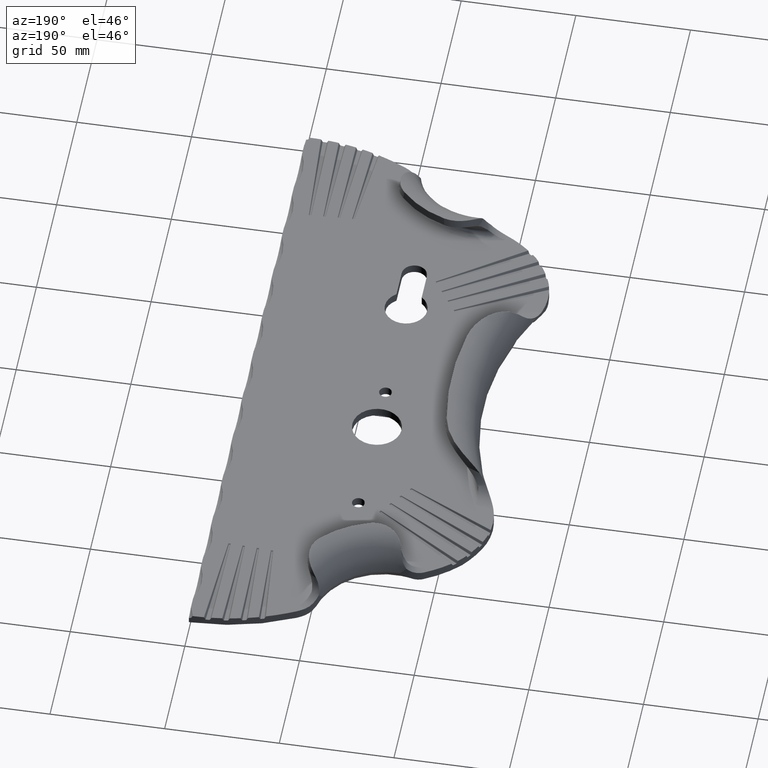
[diagram: clean part render]
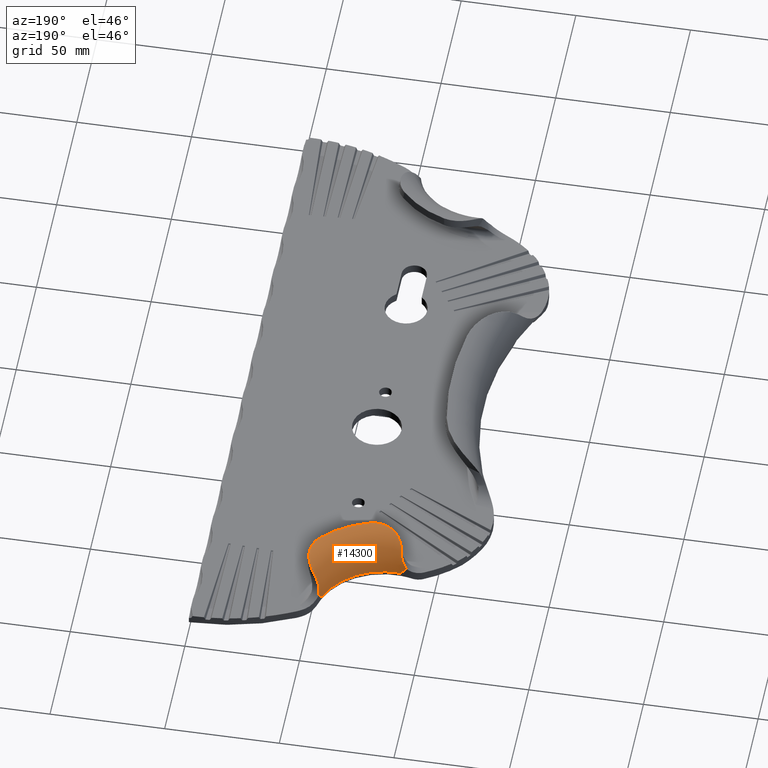
[diagram: same view with one face highlighted and labeled with its STEP entity id]
A machine part, auxiliary view. The second image highlights one B-rep face of the part: STEP entity #14300.
In plain terms, the highlighted toroidal blend (fillet) surface has major radius 46.3857 mm and minor (blend) radius 16.1429 mm.
Its self-contained STEP definition (entity closure, byte-faithful):
#186 = VERTEX_POINT ( 'NONE', #323 ) ;
#229 = VERTEX_POINT ( 'NONE', #3477 ) ;
#323 = CARTESIAN_POINT ( 'NONE',  ( -51.52147292990645900, 267.5615496014710300, 13.67814357956966700 ) ) ;
#465 = CARTESIAN_POINT ( 'NONE',  ( -85.03321912463096100, 249.3537609815124100, 4.000000000000000000 ) ) ;
#516 = CARTESIAN_POINT ( 'NONE',  ( -70.34831308094410900, 237.0425028211650200, 19.99999999999999300 ) ) ;
#522 = CARTESIAN_POINT ( 'NONE',  ( -48.53618778916807500, 264.2631295396287800, 17.47372681381240200 ) ) ;
#715 = EDGE_CURVE ( 'NONE', #229, #2628, #10956, .T. ) ;
#1177 = VERTEX_POINT ( 'NONE', #9949 ) ;
#1230 = ORIENTED_EDGE ( 'NONE', *, *, #5495, .T. ) ;
#1554 = ORIENTED_EDGE ( 'NONE', *, *, #9859, .T. ) ;
#1572 = AXIS2_PLACEMENT_3D ( 'NONE', #12414, #6855, #12467 ) ;
#1623 = CARTESIAN_POINT ( 'NONE',  ( -49.63767188010626800, 265.8392460711502300, 16.26261955578323500 ) ) ;
#1818 = CIRCLE ( 'NONE', #1572, 30.24287678107400600 ) ;
#1852 = CARTESIAN_POINT ( 'NONE',  ( -87.07341709263732800, 249.0721335381085700, 7.981971563556558500 ) ) ;
#1873 = CARTESIAN_POINT ( 'NONE',  ( -80.62111632224099400, 239.2818889661822700, 18.95570221436230400 ) ) ;
#2299 = CARTESIAN_POINT ( 'NONE',  ( -53.74545148798242900, 270.6454672629559500, 6.108510218012996900 ) ) ;
#2462 = CARTESIAN_POINT ( 'NONE',  ( -51.52147292990645900, 267.5615496014710300, 13.67814357956966700 ) ) ;
#2628 = VERTEX_POINT ( 'NONE', #6489 ) ;
#2666 = VERTEX_POINT ( 'NONE', #465 ) ;
#2890 = DIRECTION ( 'NONE',  ( 0.0000000000000000000, 0.0000000000000000000, 1.000000000000000000 ) ) ;
#2945 = ORIENTED_EDGE ( 'NONE', *, *, #14337, .T. ) ;
#3021 = B_SPLINE_CURVE_WITH_KNOTS ( 'NONE', 3,
 ( #8054, #18111, #2299, #5132 ),
 .UNSPECIFIED., .F., .F.,
 ( 4, 4 ),
 ( -2.541090976563400100E-005, 0.004137654304646486100 ),
 .UNSPECIFIED. ) ;
#3305 = CARTESIAN_POINT ( 'NONE',  ( -84.31403366950513600, 244.0167062187763600, 15.95421784292702900 ) ) ;
#3364 = CARTESIAN_POINT ( 'NONE',  ( -83.21737852322365800, 242.0381566964796900, 17.46744685447505700 ) ) ;
#3401 = CARTESIAN_POINT ( 'NONE',  ( -85.46113334236746100, 247.6349744089502800, 11.30975695110013600 ) ) ;
#3428 = CARTESIAN_POINT ( 'NONE',  ( -78.31989773329897300, 237.9124225908197700, 19.49080380954675500 ) ) ;
#3477 = CARTESIAN_POINT ( 'NONE',  ( -84.96299517538510300, 246.1180904038264700, 13.67814357956966900 ) ) ;
#3564 = VERTEX_POINT ( 'NONE', #13100 ) ;
#4361 = CARTESIAN_POINT ( 'NONE',  ( -49.37139009923249900, 250.4936410468964100, 20.00000000000000000 ) ) ;
#4513 = CARTESIAN_POINT ( 'NONE',  ( -82.78054850216793200, 279.5126248702916900, 4.000000000000001800 ) ) ;
#4535 = CARTESIAN_POINT ( 'NONE',  ( -53.32544940541043100, 270.7120924727557800, 7.981971563564794500 ) ) ;
#4585 = CARTESIAN_POINT ( 'NONE',  ( -87.70551391134490900, 249.3480570742898100, 7.203702910011755600 ) ) ;
#4601 = CARTESIAN_POINT ( 'NONE',  ( -47.96489385701580900, 263.1747969231105300, 18.06686452502843900 ) ) ;
#4755 = DIRECTION ( 'NONE',  ( 1.000000000000000000, 0.0000000000000000000, 0.0000000000000000000 ) ) ;
#4833 = CARTESIAN_POINT ( 'NONE',  ( -82.98461427082757800, 241.7122692800068600, 17.67544101901422600 ) ) ;
#4953 = AXIS2_PLACEMENT_3D ( 'NONE', #4513, #13388, #4755 ) ;
#4959 = CARTESIAN_POINT ( 'NONE',  ( -84.85547435306510500, 245.5677954339647900, 14.40184239309483900 ) ) ;
#4967 = CARTESIAN_POINT ( 'NONE',  ( -87.70551391134490900, 249.3480570742898100, 7.203702910011755600 ) ) ;
#5132 = CARTESIAN_POINT ( 'NONE',  ( -53.30945088836770700, 271.4512691237357000, 7.152747542949389200 ) ) ;
#5451 = EDGE_CURVE ( 'NONE', #17097, #1177, #3021, .T. ) ;
#5495 = EDGE_CURVE ( 'NONE', #13809, #1177, #18235, .T. ) ;
#5729 = CARTESIAN_POINT ( 'NONE',  ( -46.81096011017601200, 258.1006598506812100, 19.49962537529797000 ) ) ;
#6034 = B_SPLINE_CURVE_WITH_KNOTS ( 'NONE', 3,
 ( #17392, #4361, #14394, #7377, #17522, #15850, #8866, #10316, #14454, #5729, #18864, #7182, #11756, #8675, #18806, #14754, #4601, #12293, #522, #9459, #1623, #13240, #14693, #6045, #16165, #7890 ),
 .UNSPECIFIED., .F., .F.,
 ( 4, 2, 2, 2, 2, 2, 2, 2, 2, 2, 2, 2, 4 ),
 ( 0.0000000000000000000, 0.002712338755535840000, 0.004068508133303760600, 0.005424677511071679900, 0.008137016266607526400, 0.01084935502214337200, 0.01220552439991121800, 0.01356169377767906300, 0.01491786315544690700, 0.01627403253321475400, 0.01898637128875056700, 0.02034254066651846800, 0.02169871004428636900 ),
 .UNSPECIFIED. ) ;
#6045 = CARTESIAN_POINT ( 'NONE',  ( -51.06388272555322800, 267.2177129684948800, 14.38184835343107400 ) ) ;
#6159 = CARTESIAN_POINT ( 'NONE',  ( -77.07177791856038600, 237.4089919662524200, 19.66652372324664500 ) ) ;
#6229 = CARTESIAN_POINT ( 'NONE',  ( -79.50742879361060000, 238.5489842872434800, 19.25313800566677000 ) ) ;
#6266 = CARTESIAN_POINT ( 'NONE',  ( -85.53607800476127900, 247.7642852000908200, 11.06310818151835700 ) ) ;
#6291 = CARTESIAN_POINT ( 'NONE',  ( -73.06813820476897100, 236.7239866615219600, 19.94599862216261200 ) ) ;
#6363 = B_SPLINE_CURVE_WITH_KNOTS ( 'NONE', 3,
 ( #16051, #7383, #16352, #4967 ),
 .UNSPECIFIED., .F., .F.,
 ( 4, 4 ),
 ( -2.541090990826575700E-005, 0.004146538131965842700 ),
 .UNSPECIFIED. ) ;
#6489 = CARTESIAN_POINT ( 'NONE',  ( -69.47443913376184800, 237.3180802070143000, 20.00000000000000000 ) ) ;
#6555 = CARTESIAN_POINT ( 'NONE',  ( -87.07341709263732800, 249.0721335381085700, 7.981971563556558500 ) ) ;
#6797 = CARTESIAN_POINT ( 'NONE',  ( -52.54559983989070600, 268.3850764944643900, 11.80779912541620300 ) ) ;
#6798 = EDGE_CURVE ( 'NONE', #14826, #12654, #7315, .T. ) ;
#6855 = DIRECTION ( 'NONE',  ( -0.0000000000000000000, -0.0000000000000000000, -1.000000000000000000 ) ) ;
#7182 = CARTESIAN_POINT ( 'NONE',  ( -47.04973423954137200, 260.3037205567908900, 19.05977557579773700 ) ) ;
#7315 = B_SPLINE_CURVE_WITH_KNOTS ( 'NONE', 3,
 ( #4585, #16555, #18036, #6555 ),
 .UNSPECIFIED., .F., .F.,
 ( 4, 4 ),
 ( 0.0000000000000000000, 0.001039895323159712000 ),
 .UNSPECIFIED. ) ;
#7377 = CARTESIAN_POINT ( 'NONE',  ( -48.18017861975867100, 252.4143098965862500, 19.95769703308526700 ) ) ;
#7383 = CARTESIAN_POINT ( 'NONE',  ( -85.91751008393616500, 249.4198117542829600, 5.071248569951654500 ) ) ;
#7550 = CARTESIAN_POINT ( 'NONE',  ( -75.76131146569828400, 237.0407676837931800, 19.79468816675572300 ) ) ;
#7677 = CARTESIAN_POINT ( 'NONE',  ( -79.11711418141408100, 238.3211700593109300, 19.34017673118167500 ) ) ;
#7853 = CARTESIAN_POINT ( 'NONE',  ( -85.95251122288668500, 248.3749816336713000, 9.837619240292799100 ) ) ;
#7890 = CARTESIAN_POINT ( 'NONE',  ( -51.52147292990645900, 267.5615496014710300, 13.67814357956966700 ) ) ;
#8026 = CARTESIAN_POINT ( 'NONE',  ( -53.00404300187519600, 269.1428935399589500, 10.33946203778952900 ) ) ;
#8054 = CARTESIAN_POINT ( 'NONE',  ( -54.43269577446476100, 268.9755075356656000, 4.000000000000000000 ) ) ;
#8501 = TOROIDAL_SURFACE ( 'NONE', #4953, 46.38573392393117000, 16.14285714285713900 ) ;
#8675 = CARTESIAN_POINT ( 'NONE',  ( -47.36316136993488600, 261.5886808628307600, 18.69371545626807000 ) ) ;
#8866 = CARTESIAN_POINT ( 'NONE',  ( -47.47276338918131000, 254.0953984699177400, 19.88402765034037100 ) ) ;
#9000 = ORIENTED_EDGE ( 'NONE', *, *, #10690, .T. ) ;
#9186 = EDGE_CURVE ( 'NONE', #2628, #3564, #10923, .T. ) ;
#9269 = CARTESIAN_POINT ( 'NONE',  ( -82.19219503635518700, 240.7521203438728000, 18.23450820168326200 ) ) ;
#9433 = CARTESIAN_POINT ( 'NONE',  ( -85.26864362375492600, 247.2241981231774200, 12.03885993091450300 ) ) ;
#9459 = CARTESIAN_POINT ( 'NONE',  ( -49.17515399630590900, 265.2634154542855100, 16.78612869051593700 ) ) ;
#9777 = EDGE_LOOP ( 'NONE', ( #15110, #9000, #12894, #2945, #13944, #10853, #1554, #12773, #1230, #13731 ) ) ;
#9859 = EDGE_CURVE ( 'NONE', #3564, #186, #6034, .T. ) ;
#9949 = CARTESIAN_POINT ( 'NONE',  ( -53.30945088836770700, 271.4512691237357000, 7.152747542949389200 ) ) ;
#9978 = EDGE_CURVE ( 'NONE', #17097, #2666, #1818, .T. ) ;
#10064 = CARTESIAN_POINT ( 'NONE',  ( -53.12041058653562000, 269.4212692210331900, 9.842576324913951100 ) ) ;
#10203 = CARTESIAN_POINT ( 'NONE',  ( -87.70551391134490900, 249.3480570742898100, 7.203702910011755600 ) ) ;
#10316 = CARTESIAN_POINT ( 'NONE',  ( -47.08970315421313300, 255.3955995841387200, 19.80072997454527300 ) ) ;
#10561 = CARTESIAN_POINT ( 'NONE',  ( -84.16760312938946200, 243.6890220958649400, 16.23791650537157900 ) ) ;
#10677 = CARTESIAN_POINT ( 'NONE',  ( -71.24448830906681000, 236.8683821741245500, 19.99049023744774100 ) ) ;
#10690 = EDGE_CURVE ( 'NONE', #2666, #14826, #6363, .T. ) ;
#10745 = CARTESIAN_POINT ( 'NONE',  ( -69.47443913376184800, 237.3180802070143000, 20.00000000000000000 ) ) ;
#10853 = ORIENTED_EDGE ( 'NONE', *, *, #9186, .T. ) ;
#10923 = CIRCLE ( 'NONE', #14341, 44.24287678107398800 ) ;
#10956 = B_SPLINE_CURVE_WITH_KNOTS ( 'NONE', 3,
 ( #15002, #4959, #17865, #3305, #10561, #14875, #17930, #3364, #4833, #15063, #9269, #16225, #1873, #6229, #7677, #3428, #17809, #6159, #13524, #7550, #14933, #17679, #6291, #10677, #516, #10745 ),
 .UNSPECIFIED., .F., .F.,
 ( 4, 2, 2, 2, 2, 2, 2, 2, 2, 2, 2, 2, 4 ),
 ( 0.004526326329304267700, 0.007234983949490143100, 0.008589312759583047500, 0.009943641569675951800, 0.01129797037976885600, 0.01265229918986176100, 0.01536095681004751700, 0.01671528562014041800, 0.01806961443023331900, 0.01942394324032622000, 0.02077827205041912100, 0.02348692967060492600, 0.02619558729079072400 ),
 .UNSPECIFIED. ) ;
#11215 = EDGE_CURVE ( 'NONE', #186, #13809, #14508, .T. ) ;
#11698 = CARTESIAN_POINT ( 'NONE',  ( -53.30945088836770700, 271.4512691237357000, 7.152747542949389200 ) ) ;
#11756 = CARTESIAN_POINT ( 'NONE',  ( -47.13930622696471300, 260.7373105964431900, 18.94821357619292400 ) ) ;
#12200 = CARTESIAN_POINT ( 'NONE',  ( -85.03047273591420200, 246.4634426931458200, 13.22396708202433800 ) ) ;
#12293 = CARTESIAN_POINT ( 'NONE',  ( -48.33408519459239000, 263.9088891793757100, 17.68477716498838200 ) ) ;
#12414 = CARTESIAN_POINT ( 'NONE',  ( -82.78054850216793200, 279.5126248702916900, 4.000000000000000000 ) ) ;
#12467 = DIRECTION ( 'NONE',  ( 1.000000000000000000, 0.0000000000000000000, 0.0000000000000000000 ) ) ;
#12654 = VERTEX_POINT ( 'NONE', #15414 ) ;
#12773 = ORIENTED_EDGE ( 'NONE', *, *, #11215, .T. ) ;
#12894 = ORIENTED_EDGE ( 'NONE', *, *, #6798, .T. ) ;
#12980 = FACE_OUTER_BOUND ( 'NONE', #9777, .T. ) ;
#13100 = CARTESIAN_POINT ( 'NONE',  ( -49.98703428582969400, 249.8138442352535500, 20.00000000000000000 ) ) ;
#13240 = CARTESIAN_POINT ( 'NONE',  ( -50.34988420565095900, 266.5817143216023100, 15.36493863468905200 ) ) ;
#13388 = DIRECTION ( 'NONE',  ( 0.0000000000000000000, 0.0000000000000000000, 1.000000000000000000 ) ) ;
#13474 = CARTESIAN_POINT ( 'NONE',  ( -53.32544940541043100, 270.7120924727557800, 7.981971563564794500 ) ) ;
#13524 = CARTESIAN_POINT ( 'NONE',  ( -76.64196207834115200, 237.2707338220597300, 19.71369261392394300 ) ) ;
#13541 = CARTESIAN_POINT ( 'NONE',  ( -53.33204656025165500, 270.9459309648992200, 7.694142900433158500 ) ) ;
#13731 = ORIENTED_EDGE ( 'NONE', *, *, #5451, .F. ) ;
#13809 = VERTEX_POINT ( 'NONE', #13474 ) ;
#13944 = ORIENTED_EDGE ( 'NONE', *, *, #715, .T. ) ;
#14162 = B_SPLINE_CURVE_WITH_KNOTS ( 'NONE', 3,
 ( #1852, #16136, #7853, #6266, #3401, #16501, #9433, #16388, #12200, #16442 ),
 .UNSPECIFIED., .F., .F.,
 ( 4, 2, 2, 2, 4 ),
 ( 0.0000000000000000000, 0.003400009266734345800, 0.004250011583417933500, 0.005100013900101520700, 0.006800018533468650900 ),
 .UNSPECIFIED. ) ;
#14300 = ADVANCED_FACE ( 'NONE', ( #12980 ), #8501, .T. ) ;
#14337 = EDGE_CURVE ( 'NONE', #12654, #229, #14162, .T. ) ;
#14341 = AXIS2_PLACEMENT_3D ( 'NONE', #14476, #2890, #17651 ) ;
#14394 = CARTESIAN_POINT ( 'NONE',  ( -48.84404790930897600, 251.2296026270682300, 19.99049822385258000 ) ) ;
#14454 = CARTESIAN_POINT ( 'NONE',  ( -46.93107091898361500, 256.2855869505463000, 19.72474029600389800 ) ) ;
#14476 = CARTESIAN_POINT ( 'NONE',  ( -82.78054850216793200, 279.5126248702916900, 20.00000000000000000 ) ) ;
#14508 = B_SPLINE_CURVE_WITH_KNOTS ( 'NONE', 3,
 ( #2462, #16680, #6797, #8026, #10064, #17203, #18672, #17006 ),
 .UNSPECIFIED., .F., .F.,
 ( 4, 2, 2, 4 ),
 ( 3.469446951953614200E-018, 0.003411662640979776000, 0.005117493961469626000, 0.006823325281959475600 ),
 .UNSPECIFIED. ) ;
#14693 = CARTESIAN_POINT ( 'NONE',  ( -50.59147975242599700, 266.8096189275919400, 15.04526648920928600 ) ) ;
#14754 = CARTESIAN_POINT ( 'NONE',  ( -47.79639259355602800, 262.7928317250438100, 18.23940253552369100 ) ) ;
#14826 = VERTEX_POINT ( 'NONE', #10203 ) ;
#14875 = CARTESIAN_POINT ( 'NONE',  ( -83.82937554486589700, 243.0262399466025200, 16.76952279340017100 ) ) ;
#14933 = CARTESIAN_POINT ( 'NONE',  ( -75.31397042209756900, 236.9502344834183400, 19.82813834925076100 ) ) ;
#15002 = CARTESIAN_POINT ( 'NONE',  ( -84.96299517538510300, 246.1180904038264700, 13.67814357956966900 ) ) ;
#15063 = CARTESIAN_POINT ( 'NONE',  ( -82.47310918541751300, 241.0703209910900300, 18.05844001455221800 ) ) ;
#15110 = ORIENTED_EDGE ( 'NONE', *, *, #9978, .T. ) ;
#15414 = CARTESIAN_POINT ( 'NONE',  ( -87.07341709263732800, 249.0721335381085700, 7.981971563556558500 ) ) ;
#15850 = CARTESIAN_POINT ( 'NONE',  ( -47.62486357157111900, 253.6674421989608000, 19.90654578665708000 ) ) ;
#16051 = CARTESIAN_POINT ( 'NONE',  ( -85.03321912463096100, 249.3537609815124100, 4.000000000000000000 ) ) ;
#16136 = CARTESIAN_POINT ( 'NONE',  ( -86.42176570377658600, 248.7503757217078500, 8.876172809183017900 ) ) ;
#16165 = CARTESIAN_POINT ( 'NONE',  ( -51.29591019302437600, 267.3993601482770800, 14.03672708309116700 ) ) ;
#16225 = CARTESIAN_POINT ( 'NONE',  ( -81.29210015447786500, 239.8368772447521500, 18.70962726307972800 ) ) ;
#16352 = CARTESIAN_POINT ( 'NONE',  ( -86.80682242196127200, 249.4190425675544700, 6.142550573092940200 ) ) ;
#16388 = CARTESIAN_POINT ( 'NONE',  ( -85.11067875400539200, 246.7827214452865100, 12.75609942982505500 ) ) ;
#16442 = CARTESIAN_POINT ( 'NONE',  ( -84.96299517538510300, 246.1180904038264700, 13.67814357956966900 ) ) ;
#16501 = CARTESIAN_POINT ( 'NONE',  ( -85.32757482675769700, 247.3651262821681500, 11.79721315798906800 ) ) ;
#16555 = CARTESIAN_POINT ( 'NONE',  ( -87.48050448577711800, 249.2601809786317200, 7.452956088871251200 ) ) ;
#16680 = CARTESIAN_POINT ( 'NONE',  ( -52.09361753631212400, 267.9729465464787400, 12.76858901252650500 ) ) ;
#16727 = CARTESIAN_POINT ( 'NONE',  ( -54.43269577446476100, 268.9755075356656000, 4.000000000000000000 ) ) ;
#17006 = CARTESIAN_POINT ( 'NONE',  ( -53.32544940541043100, 270.7120924727557800, 7.981971563564794500 ) ) ;
#17097 = VERTEX_POINT ( 'NONE', #16727 ) ;
#17203 = CARTESIAN_POINT ( 'NONE',  ( -53.27519962029433700, 270.0255100073246700, 8.886771686584419100 ) ) ;
#17392 = CARTESIAN_POINT ( 'NONE',  ( -49.98703428582969400, 249.8138442352535500, 20.00000000000000000 ) ) ;
#17454 = CARTESIAN_POINT ( 'NONE',  ( -53.32572215779750700, 271.1919907351675100, 7.417457678591102200 ) ) ;
#17522 = CARTESIAN_POINT ( 'NONE',  ( -47.98012601534424700, 252.8231461381959700, 19.94354055099860900 ) ) ;
#17651 = DIRECTION ( 'NONE',  ( 1.000000000000000000, 0.0000000000000000000, 0.0000000000000000000 ) ) ;
#17679 = CARTESIAN_POINT ( 'NONE',  ( -73.97157684033388100, 236.7551414220062600, 19.91161564521072700 ) ) ;
#17809 = CARTESIAN_POINT ( 'NONE',  ( -77.91074629614290400, 237.7298323945181300, 19.55507206174460300 ) ) ;
#17865 = CARTESIAN_POINT ( 'NONE',  ( -84.68855933198942400, 244.9684096645550000, 15.06028767468021100 ) ) ;
#17930 = CARTESIAN_POINT ( 'NONE',  ( -83.63976561502926200, 242.6951355927177200, 17.01448479457267000 ) ) ;
#18036 = CARTESIAN_POINT ( 'NONE',  ( -87.26971626570122000, 249.1690577438510600, 7.712608268902872800 ) ) ;
#18111 = CARTESIAN_POINT ( 'NONE',  ( -54.11829408154416400, 269.8213378140251800, 5.054230511729876700 ) ) ;
#18235 = B_SPLINE_CURVE_WITH_KNOTS ( 'NONE', 3,
 ( #4535, #13541, #17454, #11698 ),
 .UNSPECIFIED., .F., .F.,
 ( 4, 4 ),
 ( 0.0000000000000000000, 0.001110968293997167900 ),
 .UNSPECIFIED. ) ;
#18672 = CARTESIAN_POINT ( 'NONE',  ( -53.31531627462341300, 270.3529200596549300, 8.424072068699635100 ) ) ;
#18806 = CARTESIAN_POINT ( 'NONE',  ( -47.49553579842341800, 261.9997719001939900, 18.55283291360776900 ) ) ;
#18864 = CARTESIAN_POINT ( 'NONE',  ( -46.85141144272887500, 258.9928328364955500, 19.35447339878971500 ) ) ;